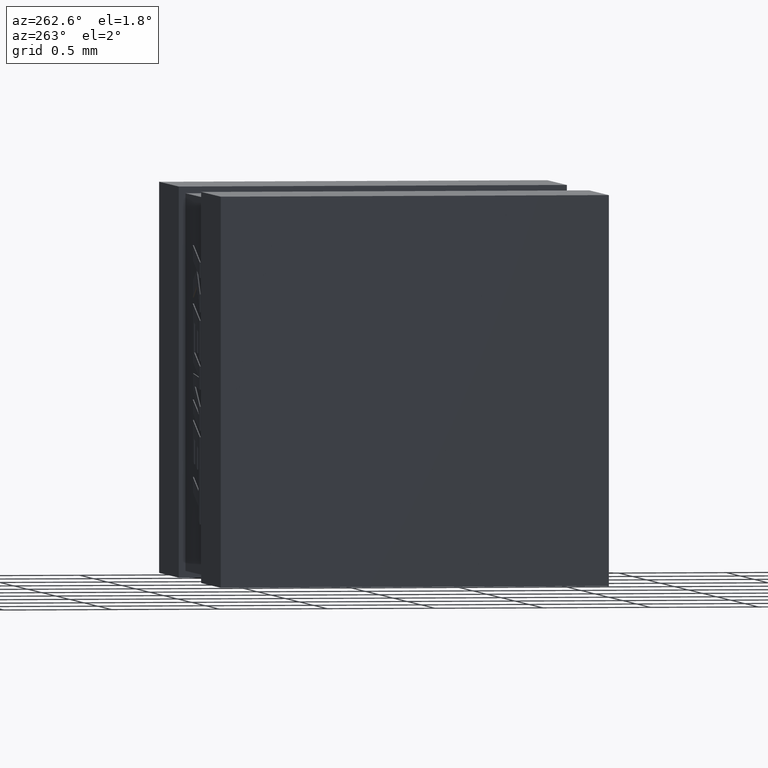
[diagram: clean part render]
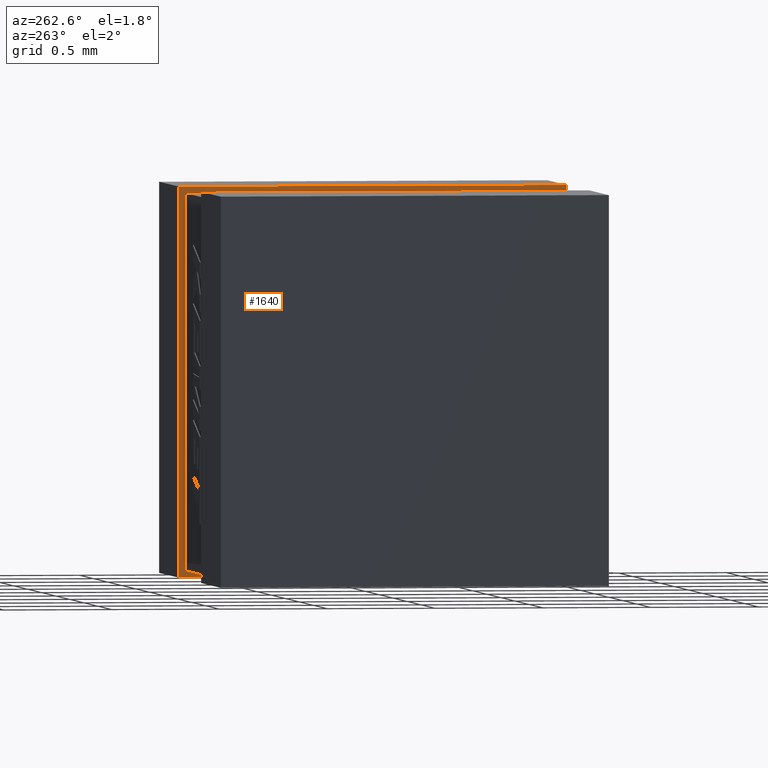
[diagram: same view with one face highlighted and labeled with its STEP entity id]
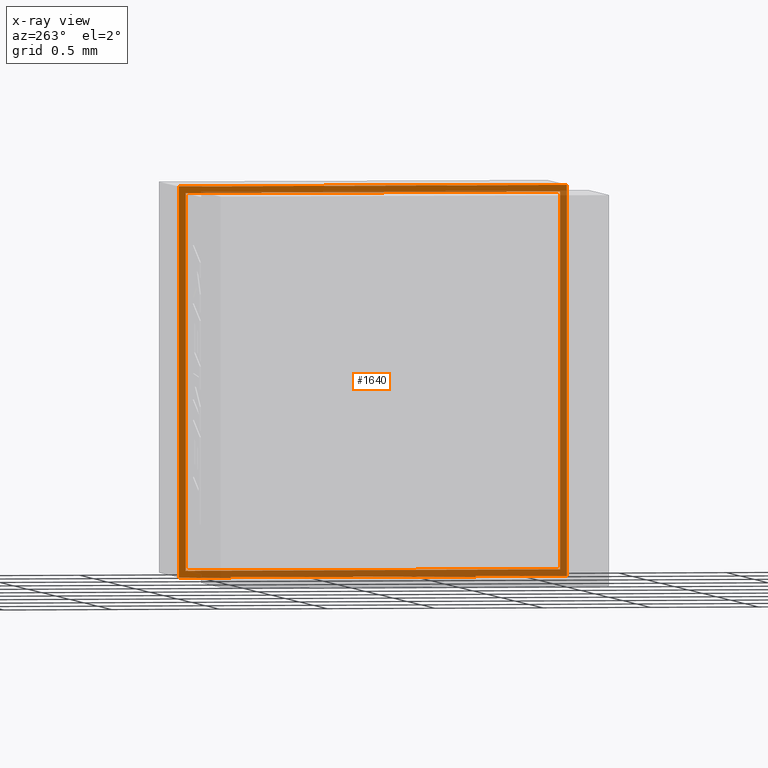
[diagram: x-ray of the same camera — body ghosted, the highlighted face saturated]
A machine part, auxiliary view. The second image highlights one B-rep face of the part: STEP entity #1640.
The next image is the same camera in x-ray: the body ghosted, the highlighted face saturated — about 54% of this face is hidden behind the body in this view.
In plain terms, the highlighted planar face has unit normal (1, 0, 0).
Its self-contained STEP definition (entity closure, byte-faithful):
#36 = EDGE_CURVE ( 'NONE', #1281, #881, #2189, .T. ) ;
#67 = VERTEX_POINT ( 'NONE', #342 ) ;
#76 = VERTEX_POINT ( 'NONE', #188 ) ;
#77 = LINE ( 'NONE', #1524, #1134 ) ;
#108 = DIRECTION ( 'NONE',  ( 0.0000000000000000000, -1.000000000000000000, 1.204669080539449300E-016 ) ) ;
#148 = DIRECTION ( 'NONE',  ( -0.0000000000000000000, -0.0000000000000000000, 1.000000000000000000 ) ) ;
#177 = DIRECTION ( 'NONE',  ( 0.0000000000000000000, 1.000000000000000000, 0.0000000000000000000 ) ) ;
#188 = CARTESIAN_POINT ( 'NONE',  ( 1.499000000000000100, 1.800000000000000000, 0.0000000000000000000 ) ) ;
#270 = DIRECTION ( 'NONE',  ( 0.0000000000000000000, 0.0000000000000000000, 1.000000000000000000 ) ) ;
#342 = CARTESIAN_POINT ( 'NONE',  ( 1.499000000000000300, 0.03103379999999959400, -0.03103380000000002800 ) ) ;
#401 = LINE ( 'NONE', #1261, #965 ) ;
#417 = VERTEX_POINT ( 'NONE', #682 ) ;
#522 = DIRECTION ( 'NONE',  ( -0.0000000000000000000, -0.0000000000000000000, -1.000000000000000000 ) ) ;
#534 = CARTESIAN_POINT ( 'NONE',  ( 1.499000000000000100, 0.0000000000000000000, 0.0000000000000000000 ) ) ;
#556 = CARTESIAN_POINT ( 'NONE',  ( 1.499000000000000100, 0.0000000000000000000, -1.800000000000000000 ) ) ;
#558 = EDGE_CURVE ( 'NONE', #1223, #2387, #401, .T. ) ;
#605 = VECTOR ( 'NONE', #853, 1000.000000000000000 ) ;
#628 = ORIENTED_EDGE ( 'NONE', *, *, #1247, .T. ) ;
#636 = EDGE_CURVE ( 'NONE', #881, #417, #871, .T. ) ;
#682 = CARTESIAN_POINT ( 'NONE',  ( 1.499000000000000100, 0.03103379999999959400, -1.768966199999999900 ) ) ;
#828 = CARTESIAN_POINT ( 'NONE',  ( 1.499000000000000100, 0.03103379999999959400, -1.768966199999999900 ) ) ;
#840 = LINE ( 'NONE', #1146, #1601 ) ;
#852 = ORIENTED_EDGE ( 'NONE', *, *, #36, .F. ) ;
#853 = DIRECTION ( 'NONE',  ( -0.0000000000000000000, 1.000000000000000000, -0.0000000000000000000 ) ) ;
#856 = EDGE_CURVE ( 'NONE', #417, #67, #1608, .T. ) ;
#871 = LINE ( 'NONE', #1715, #901 ) ;
#881 = VERTEX_POINT ( 'NONE', #1060 ) ;
#901 = VECTOR ( 'NONE', #943, 1000.000000000000000 ) ;
#922 = ORIENTED_EDGE ( 'NONE', *, *, #2504, .F. ) ;
#943 = DIRECTION ( 'NONE',  ( -0.0000000000000000000, -1.000000000000000000, -0.0000000000000000000 ) ) ;
#965 = VECTOR ( 'NONE', #108, 1000.000000000000000 ) ;
#1015 = DIRECTION ( 'NONE',  ( 1.000000000000000000, 0.0000000000000000000, 0.0000000000000000000 ) ) ;
#1020 = FACE_BOUND ( 'NONE', #1812, .T. ) ;
#1060 = CARTESIAN_POINT ( 'NONE',  ( 1.499000000000000100, 1.768966199999999500, -1.768966199999999900 ) ) ;
#1086 = VECTOR ( 'NONE', #270, 1000.000000000000000 ) ;
#1134 = VECTOR ( 'NONE', #177, 1000.000000000000000 ) ;
#1146 = CARTESIAN_POINT ( 'NONE',  ( 1.499000000000000100, 1.800000000000000000, 0.0000000000000000000 ) ) ;
#1223 = VERTEX_POINT ( 'NONE', #1508 ) ;
#1247 = EDGE_CURVE ( 'NONE', #2387, #2102, #1262, .T. ) ;
#1261 = CARTESIAN_POINT ( 'NONE',  ( 1.499000000000000100, 1.800000000000000000, -1.800000000000000300 ) ) ;
#1262 = LINE ( 'NONE', #534, #1326 ) ;
#1281 = VERTEX_POINT ( 'NONE', #1484 ) ;
#1326 = VECTOR ( 'NONE', #148, 1000.000000000000000 ) ;
#1340 = DIRECTION ( 'NONE',  ( 0.0000000000000000000, 0.0000000000000000000, -1.000000000000000000 ) ) ;
#1465 = ORIENTED_EDGE ( 'NONE', *, *, #636, .F. ) ;
#1484 = CARTESIAN_POINT ( 'NONE',  ( 1.499000000000000100, 1.768966199999999500, -0.03103380000000002800 ) ) ;
#1508 = CARTESIAN_POINT ( 'NONE',  ( 1.499000000000000100, 1.800000000000000000, -1.800000000000000300 ) ) ;
#1524 = CARTESIAN_POINT ( 'NONE',  ( 1.499000000000000100, 0.03103379999999959400, -0.03103380000000002800 ) ) ;
#1561 = ORIENTED_EDGE ( 'NONE', *, *, #2100, .T. ) ;
#1601 = VECTOR ( 'NONE', #1340, 1000.000000000000000 ) ;
#1608 = LINE ( 'NONE', #828, #1086 ) ;
#1616 = PLANE ( 'NONE',  #1662 ) ;
#1631 = ORIENTED_EDGE ( 'NONE', *, *, #558, .T. ) ;
#1640 = ADVANCED_FACE ( 'NONE', ( #2359, #1020 ), #1616, .F. ) ;
#1662 = AXIS2_PLACEMENT_3D ( 'NONE', #2173, #1015, #1987 ) ;
#1669 = VECTOR ( 'NONE', #522, 1000.000000000000000 ) ;
#1715 = CARTESIAN_POINT ( 'NONE',  ( 1.499000000000000100, 0.03103379999999959400, -1.768966199999999900 ) ) ;
#1748 = LINE ( 'NONE', #2414, #605 ) ;
#1812 = EDGE_LOOP ( 'NONE', ( #1465, #852, #922, #2264 ) ) ;
#1822 = EDGE_CURVE ( 'NONE', #76, #1223, #840, .T. ) ;
#1987 = DIRECTION ( 'NONE',  ( 0.0000000000000000000, 0.0000000000000000000, -1.000000000000000000 ) ) ;
#2016 = CARTESIAN_POINT ( 'NONE',  ( 1.499000000000000100, 0.0000000000000000000, 0.0000000000000000000 ) ) ;
#2100 = EDGE_CURVE ( 'NONE', #2102, #76, #1748, .T. ) ;
#2102 = VERTEX_POINT ( 'NONE', #2016 ) ;
#2173 = CARTESIAN_POINT ( 'NONE',  ( 1.499000000000000100, 0.0000000000000000000, 0.0000000000000000000 ) ) ;
#2189 = LINE ( 'NONE', #2298, #1669 ) ;
#2206 = EDGE_LOOP ( 'NONE', ( #1561, #2464, #1631, #628 ) ) ;
#2264 = ORIENTED_EDGE ( 'NONE', *, *, #856, .F. ) ;
#2298 = CARTESIAN_POINT ( 'NONE',  ( 1.499000000000000100, 1.768966199999999500, -1.768966199999999900 ) ) ;
#2359 = FACE_OUTER_BOUND ( 'NONE', #2206, .T. ) ;
#2387 = VERTEX_POINT ( 'NONE', #556 ) ;
#2414 = CARTESIAN_POINT ( 'NONE',  ( 1.499000000000000100, 1.800000000000000000, 0.0000000000000000000 ) ) ;
#2464 = ORIENTED_EDGE ( 'NONE', *, *, #1822, .T. ) ;
#2504 = EDGE_CURVE ( 'NONE', #67, #1281, #77, .T. ) ;